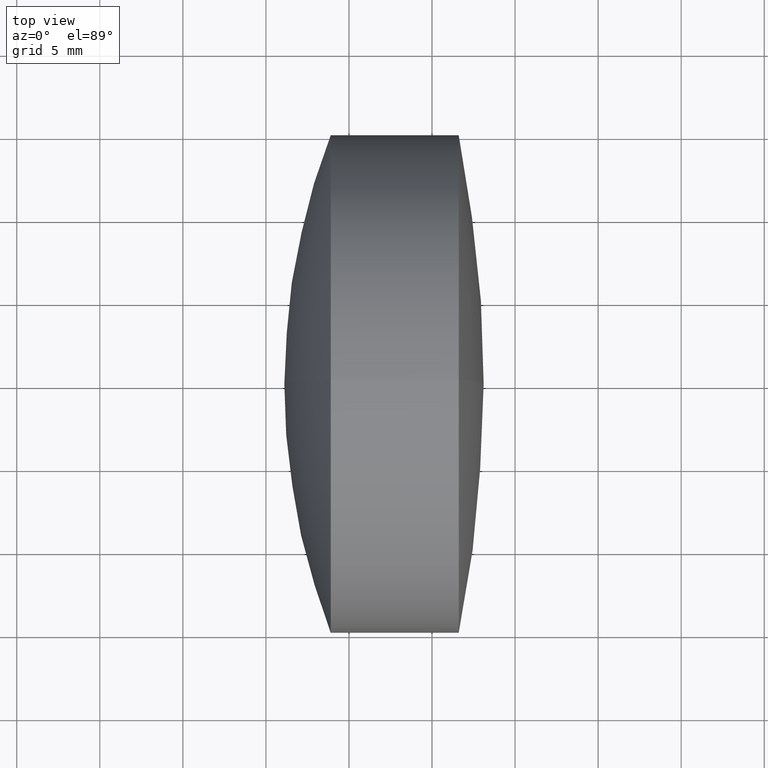
[diagram: clean part render]
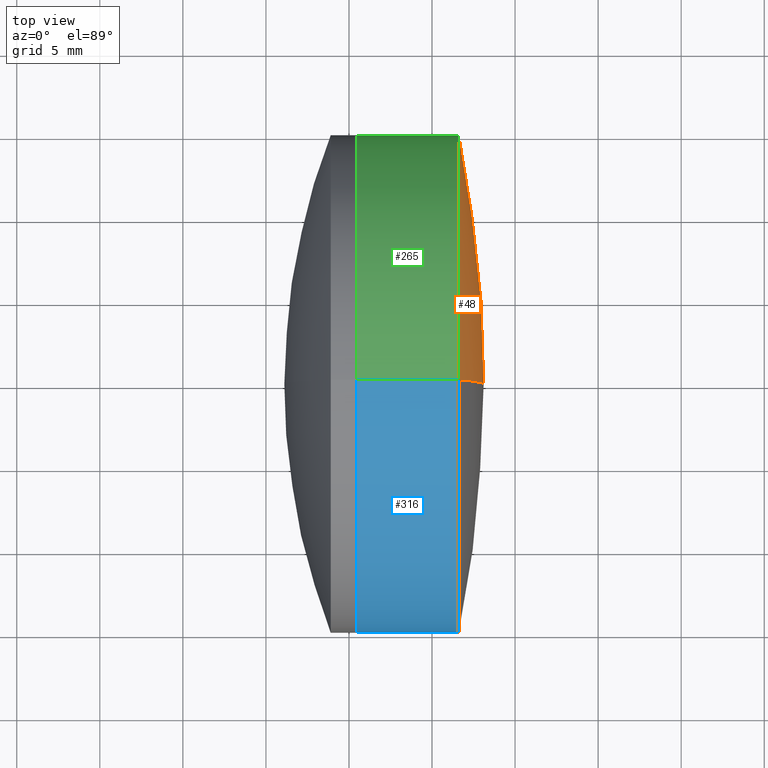
[diagram: same view with three faces highlighted in distinct colors, each labeled with its STEP entity id]
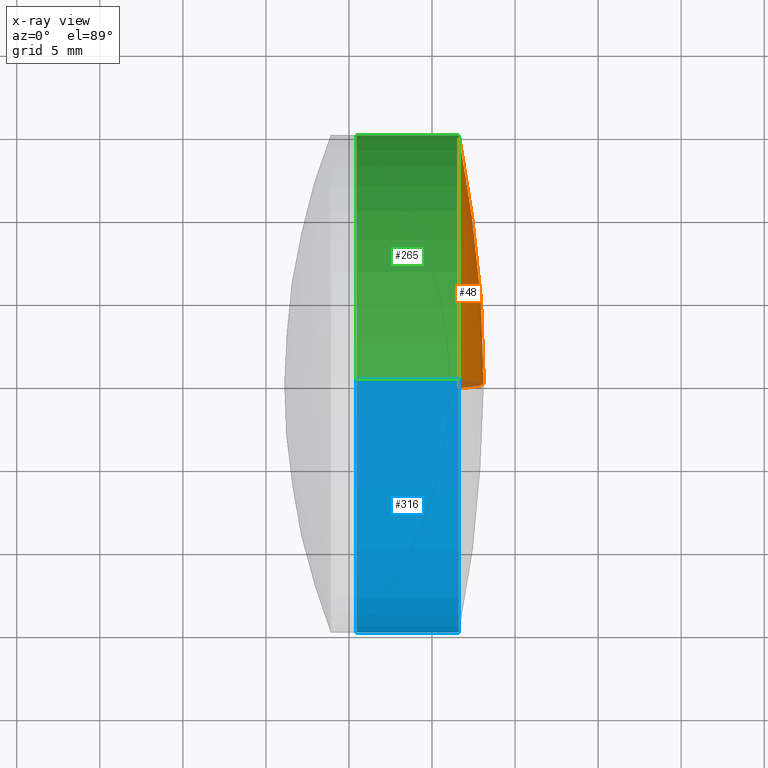
[diagram: x-ray of the same camera — body ghosted, the three highlighted faces saturated]
A machine part, top view with three faces highlighted in distinct colors.
The next image is the same camera in x-ray (body ghosted, the three faces saturated) — at least one of them is partly hidden behind the body in this view.
Their STEP definitions:

[orange] entity #48 — the highlighted spherical surface has radius 75.68 mm.
#9 = CARTESIAN_POINT ( 'NONE',  ( -52.57130196904471100, 0.0000000000000000000, 0.0000000000000000000 ) ) ;
#15 = EDGE_CURVE ( 'NONE', #213, #50, #22, .T. ) ;
#18 = AXIS2_PLACEMENT_3D ( 'NONE', #26, #205, #231 ) ;
#22 = CIRCLE ( 'NONE', #321, 15.00000000000000200 ) ;
#26 = CARTESIAN_POINT ( 'NONE',  ( -52.57130196904471100, 0.0000000000000000000, 0.0000000000000000000 ) ) ;
#48 = ADVANCED_FACE ( 'NONE', ( #151 ), #241, .T. ) ;
#50 = VERTEX_POINT ( 'NONE', #259 ) ;
#69 = DIRECTION ( 'NONE',  ( 0.0000000000000000000, 0.0000000000000000000, -1.000000000000000000 ) ) ;
#92 = DIRECTION ( 'NONE',  ( 0.0000000000000000000, 0.0000000000000000000, 1.000000000000000000 ) ) ;
#107 = DIRECTION ( 'NONE',  ( 0.0000000000000000000, -1.000000000000000000, -1.224646799147353200E-016 ) ) ;
#119 = ORIENTED_EDGE ( 'NONE', *, *, #207, .F. ) ;
#122 = DIRECTION ( 'NONE',  ( -0.0000000000000000000, -1.000000000000000000, -0.0000000000000000000 ) ) ;
#148 = DIRECTION ( 'NONE',  ( -1.000000000000000000, -0.0000000000000000000, -0.0000000000000000000 ) ) ;
#151 = FACE_OUTER_BOUND ( 'NONE', #180, .T. ) ;
#162 = DIRECTION ( 'NONE',  ( 0.0000000000000000000, 1.224646799147353200E-016, -1.000000000000000000 ) ) ;
#168 = ORIENTED_EDGE ( 'NONE', *, *, #15, .F. ) ;
#176 = CARTESIAN_POINT ( 'NONE',  ( 21.60728254158073700, -1.836970198721032300E-015, 15.00000000000002100 ) ) ;
#180 = EDGE_LOOP ( 'NONE', ( #119, #190, #168 ) ) ;
#190 = ORIENTED_EDGE ( 'NONE', *, *, #268, .T. ) ;
#205 = DIRECTION ( 'NONE',  ( 0.0000000000000000000, 1.000000000000000000, -0.0000000000000000000 ) ) ;
#207 = EDGE_CURVE ( 'NONE', #341, #213, #232, .T. ) ;
#213 = VERTEX_POINT ( 'NONE', #176 ) ;
#231 = DIRECTION ( 'NONE',  ( 0.0000000000000000000, 0.0000000000000000000, 1.000000000000000000 ) ) ;
#232 = CIRCLE ( 'NONE', #340, 75.68000000000002100 ) ;
#241 = SPHERICAL_SURFACE ( 'NONE', #297, 75.68000000000002100 ) ;
#259 = CARTESIAN_POINT ( 'NONE',  ( 21.60728254158073700, 0.0000000000000000000, -15.00000000000002100 ) ) ;
#268 = EDGE_CURVE ( 'NONE', #341, #50, #293, .T. ) ;
#276 = CARTESIAN_POINT ( 'NONE',  ( -52.57130196904471100, 0.0000000000000000000, 0.0000000000000000000 ) ) ;
#293 = CIRCLE ( 'NONE', #18, 75.68000000000002100 ) ;
#297 = AXIS2_PLACEMENT_3D ( 'NONE', #9, #122, #69 ) ;
#321 = AXIS2_PLACEMENT_3D ( 'NONE', #332, #148, #92 ) ;
#328 = CARTESIAN_POINT ( 'NONE',  ( 23.10869803095531300, 0.0000000000000000000, -4.634063487973585500E-015 ) ) ;
#332 = CARTESIAN_POINT ( 'NONE',  ( 21.60728254158073400, 0.0000000000000000000, 0.0000000000000000000 ) ) ;
#340 = AXIS2_PLACEMENT_3D ( 'NONE', #276, #107, #162 ) ;
#341 = VERTEX_POINT ( 'NONE', #328 ) ;

[blue] entity #316 — the highlighted cylindrical surface (partial cylindrical patch) has radius 15 mm, axis along (-1, -0, -0).
#38 = CARTESIAN_POINT ( 'NONE',  ( -0.5519199926577972300, 0.0000000000000000000, 0.0000000000000000000 ) ) ;
#39 = ORIENTED_EDGE ( 'NONE', *, *, #93, .T. ) ;
#41 = CIRCLE ( 'NONE', #132, 15.00000000000000200 ) ;
#49 = VECTOR ( 'NONE', #302, 1000.000000000000000 ) ;
#50 = VERTEX_POINT ( 'NONE', #259 ) ;
#51 = CIRCLE ( 'NONE', #108, 15.00000000000000200 ) ;
#54 = DIRECTION ( 'NONE',  ( -1.000000000000000000, -0.0000000000000000000, -0.0000000000000000000 ) ) ;
#58 = AXIS2_PLACEMENT_3D ( 'NONE', #38, #347, #326 ) ;
#61 = EDGE_CURVE ( 'NONE', #50, #287, #188, .T. ) ;
#68 = ORIENTED_EDGE ( 'NONE', *, *, #281, .F. ) ;
#76 = CARTESIAN_POINT ( 'NONE',  ( 21.60728254158073400, 0.0000000000000000000, 0.0000000000000000000 ) ) ;
#93 = EDGE_CURVE ( 'NONE', #213, #283, #129, .T. ) ;
#108 = AXIS2_PLACEMENT_3D ( 'NONE', #76, #54, #272 ) ;
#129 = LINE ( 'NONE', #305, #306 ) ;
#132 = AXIS2_PLACEMENT_3D ( 'NONE', #299, #225, #201 ) ;
#147 = CYLINDRICAL_SURFACE ( 'NONE', #58, 15.00000000000000200 ) ;
#161 = ORIENTED_EDGE ( 'NONE', *, *, #275, .T. ) ;
#172 = CARTESIAN_POINT ( 'NONE',  ( 15.44659696245504000, 0.0000000000000000000, 15.00000000000000000 ) ) ;
#176 = CARTESIAN_POINT ( 'NONE',  ( 21.60728254158073700, -1.836970198721032300E-015, 15.00000000000002100 ) ) ;
#188 = LINE ( 'NONE', #234, #49 ) ;
#201 = DIRECTION ( 'NONE',  ( 0.0000000000000000000, 0.0000000000000000000, 1.000000000000000000 ) ) ;
#213 = VERTEX_POINT ( 'NONE', #176 ) ;
#223 = DIRECTION ( 'NONE',  ( -1.000000000000000000, -0.0000000000000000000, -0.0000000000000000000 ) ) ;
#225 = DIRECTION ( 'NONE',  ( -1.000000000000000000, -0.0000000000000000000, -0.0000000000000000000 ) ) ;
#234 = CARTESIAN_POINT ( 'NONE',  ( -0.5519199926577972300, 1.836970198721030000E-015, -15.00000000000000200 ) ) ;
#259 = CARTESIAN_POINT ( 'NONE',  ( 21.60728254158073700, 0.0000000000000000000, -15.00000000000002100 ) ) ;
#271 = FACE_OUTER_BOUND ( 'NONE', #315, .T. ) ;
#272 = DIRECTION ( 'NONE',  ( 0.0000000000000000000, 0.0000000000000000000, 1.000000000000000000 ) ) ;
#275 = EDGE_CURVE ( 'NONE', #50, #213, #51, .T. ) ;
#279 = CARTESIAN_POINT ( 'NONE',  ( 15.44659696245504000, 1.836970198721029600E-015, -15.00000000000000200 ) ) ;
#281 = EDGE_CURVE ( 'NONE', #287, #283, #41, .T. ) ;
#283 = VERTEX_POINT ( 'NONE', #172 ) ;
#287 = VERTEX_POINT ( 'NONE', #279 ) ;
#299 = CARTESIAN_POINT ( 'NONE',  ( 15.44659696245504000, 0.0000000000000000000, 0.0000000000000000000 ) ) ;
#302 = DIRECTION ( 'NONE',  ( -1.000000000000000000, -0.0000000000000000000, -0.0000000000000000000 ) ) ;
#305 = CARTESIAN_POINT ( 'NONE',  ( -0.5519199926577972300, 0.0000000000000000000, 15.00000000000000200 ) ) ;
#306 = VECTOR ( 'NONE', #223, 1000.000000000000000 ) ;
#310 = ORIENTED_EDGE ( 'NONE', *, *, #61, .F. ) ;
#315 = EDGE_LOOP ( 'NONE', ( #310, #161, #39, #68 ) ) ;
#316 = ADVANCED_FACE ( 'NONE', ( #271 ), #147, .T. ) ;
#326 = DIRECTION ( 'NONE',  ( 0.0000000000000000000, 0.0000000000000000000, 1.000000000000000000 ) ) ;
#347 = DIRECTION ( 'NONE',  ( -1.000000000000000000, -0.0000000000000000000, -0.0000000000000000000 ) ) ;

[green] entity #265 — the highlighted cylindrical surface (partial cylindrical patch) has radius 15 mm, axis along (-1, -0, -0).
#15 = EDGE_CURVE ( 'NONE', #213, #50, #22, .T. ) ;
#22 = CIRCLE ( 'NONE', #321, 15.00000000000000200 ) ;
#32 = CARTESIAN_POINT ( 'NONE',  ( -0.5519199926577972300, 0.0000000000000000000, 0.0000000000000000000 ) ) ;
#49 = VECTOR ( 'NONE', #302, 1000.000000000000000 ) ;
#50 = VERTEX_POINT ( 'NONE', #259 ) ;
#61 = EDGE_CURVE ( 'NONE', #50, #287, #188, .T. ) ;
#70 = DIRECTION ( 'NONE',  ( -1.000000000000000000, -0.0000000000000000000, -0.0000000000000000000 ) ) ;
#92 = DIRECTION ( 'NONE',  ( 0.0000000000000000000, 0.0000000000000000000, 1.000000000000000000 ) ) ;
#93 = EDGE_CURVE ( 'NONE', #213, #283, #129, .T. ) ;
#104 = ORIENTED_EDGE ( 'NONE', *, *, #15, .T. ) ;
#129 = LINE ( 'NONE', #305, #306 ) ;
#143 = AXIS2_PLACEMENT_3D ( 'NONE', #257, #70, #196 ) ;
#148 = DIRECTION ( 'NONE',  ( -1.000000000000000000, -0.0000000000000000000, -0.0000000000000000000 ) ) ;
#159 = AXIS2_PLACEMENT_3D ( 'NONE', #32, #344, #191 ) ;
#160 = ORIENTED_EDGE ( 'NONE', *, *, #61, .T. ) ;
#172 = CARTESIAN_POINT ( 'NONE',  ( 15.44659696245504000, 0.0000000000000000000, 15.00000000000000000 ) ) ;
#176 = CARTESIAN_POINT ( 'NONE',  ( 21.60728254158073700, -1.836970198721032300E-015, 15.00000000000002100 ) ) ;
#183 = ORIENTED_EDGE ( 'NONE', *, *, #311, .F. ) ;
#188 = LINE ( 'NONE', #234, #49 ) ;
#191 = DIRECTION ( 'NONE',  ( 0.0000000000000000000, 0.0000000000000000000, 1.000000000000000000 ) ) ;
#196 = DIRECTION ( 'NONE',  ( 0.0000000000000000000, 0.0000000000000000000, 1.000000000000000000 ) ) ;
#213 = VERTEX_POINT ( 'NONE', #176 ) ;
#223 = DIRECTION ( 'NONE',  ( -1.000000000000000000, -0.0000000000000000000, -0.0000000000000000000 ) ) ;
#234 = CARTESIAN_POINT ( 'NONE',  ( -0.5519199926577972300, 1.836970198721030000E-015, -15.00000000000000200 ) ) ;
#257 = CARTESIAN_POINT ( 'NONE',  ( 15.44659696245504000, 0.0000000000000000000, 0.0000000000000000000 ) ) ;
#259 = CARTESIAN_POINT ( 'NONE',  ( 21.60728254158073700, 0.0000000000000000000, -15.00000000000002100 ) ) ;
#265 = ADVANCED_FACE ( 'NONE', ( #317 ), #301, .T. ) ;
#279 = CARTESIAN_POINT ( 'NONE',  ( 15.44659696245504000, 1.836970198721029600E-015, -15.00000000000000200 ) ) ;
#283 = VERTEX_POINT ( 'NONE', #172 ) ;
#287 = VERTEX_POINT ( 'NONE', #279 ) ;
#294 = EDGE_LOOP ( 'NONE', ( #104, #160, #183, #331 ) ) ;
#301 = CYLINDRICAL_SURFACE ( 'NONE', #159, 15.00000000000000200 ) ;
#302 = DIRECTION ( 'NONE',  ( -1.000000000000000000, -0.0000000000000000000, -0.0000000000000000000 ) ) ;
#303 = CIRCLE ( 'NONE', #143, 15.00000000000000200 ) ;
#305 = CARTESIAN_POINT ( 'NONE',  ( -0.5519199926577972300, 0.0000000000000000000, 15.00000000000000200 ) ) ;
#306 = VECTOR ( 'NONE', #223, 1000.000000000000000 ) ;
#311 = EDGE_CURVE ( 'NONE', #283, #287, #303, .T. ) ;
#317 = FACE_OUTER_BOUND ( 'NONE', #294, .T. ) ;
#321 = AXIS2_PLACEMENT_3D ( 'NONE', #332, #148, #92 ) ;
#331 = ORIENTED_EDGE ( 'NONE', *, *, #93, .F. ) ;
#332 = CARTESIAN_POINT ( 'NONE',  ( 21.60728254158073400, 0.0000000000000000000, 0.0000000000000000000 ) ) ;
#344 = DIRECTION ( 'NONE',  ( -1.000000000000000000, -0.0000000000000000000, -0.0000000000000000000 ) ) ;